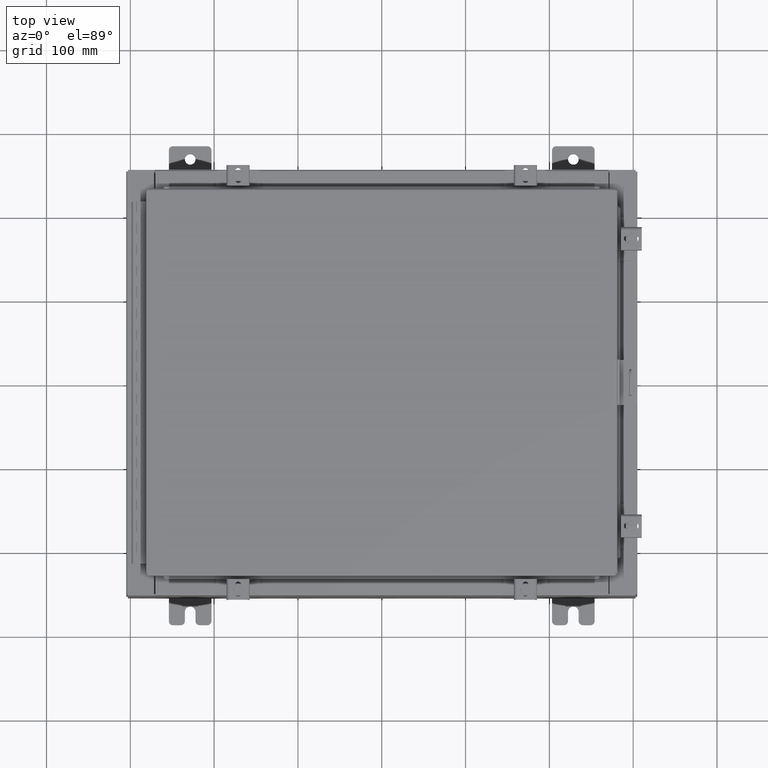
[diagram: clean part render]
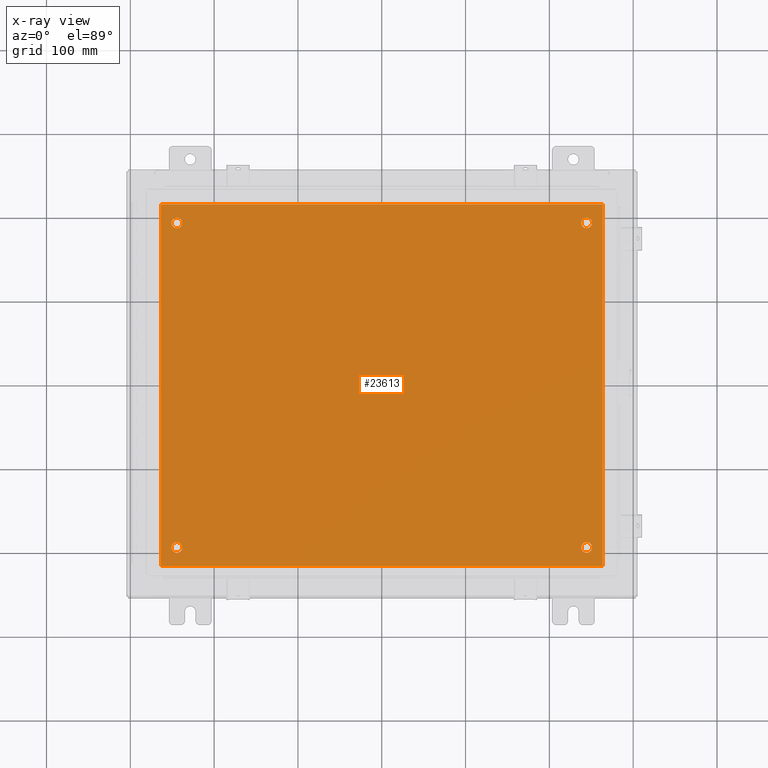
[diagram: x-ray — body ghosted, one internal face saturated and labeled with its STEP entity id]
A machine part, top view, then the same camera in x-ray: the body is ghosted and one INTERNAL B-rep face — a face not visible from any outside direction — is saturated and labeled: STEP entity #23613.
In plain terms, the highlighted planar face has unit normal (0, 0, -1).
Its self-contained STEP definition (entity closure, byte-faithful):
#573 = CIRCLE ( 'NONE', #16847, 0.2500000000000008900 ) ;
#1018 = VERTEX_POINT ( 'NONE', #15538 ) ;
#1327 = DIRECTION ( 'NONE',  ( -1.000000000000000000, 0.0000000000000000000, 0.0000000000000000000 ) ) ;
#1352 = EDGE_CURVE ( 'NONE', #27496, #16931, #22522, .T. ) ;
#1934 = DIRECTION ( 'NONE',  ( -1.000000000000000000, 0.0000000000000000000, 0.0000000000000000000 ) ) ;
#1976 = CARTESIAN_POINT ( 'NONE',  ( -9.625000000000001800, 7.624999999999998200, -0.1039999999999999800 ) ) ;
#2309 = CARTESIAN_POINT ( 'NONE',  ( 9.375000000000001800, 7.624999999999998200, -0.1039999999999999800 ) ) ;
#2373 = DIRECTION ( 'NONE',  ( 1.000000000000000000, 0.0000000000000000000, 0.0000000000000000000 ) ) ;
#2505 = ORIENTED_EDGE ( 'NONE', *, *, #24693, .F. ) ;
#2699 = ORIENTED_EDGE ( 'NONE', *, *, #5738, .T. ) ;
#2883 = VECTOR ( 'NONE', #2373, 39.37007874015748100 ) ;
#2985 = CIRCLE ( 'NONE', #23309, 0.2500000000000008900 ) ;
#3269 = EDGE_CURVE ( 'NONE', #16931, #27496, #11689, .T. ) ;
#3417 = LINE ( 'NONE', #9598, #26187 ) ;
#3978 = AXIS2_PLACEMENT_3D ( 'NONE', #28964, #14921, #1327 ) ;
#4102 = EDGE_CURVE ( 'NONE', #10489, #12985, #27028, .T. ) ;
#4253 = DIRECTION ( 'NONE',  ( -1.000000000000000000, 0.0000000000000000000, 0.0000000000000000000 ) ) ;
#4440 = CARTESIAN_POINT ( 'NONE',  ( -9.625000000000001800, -7.624999999999998200, -0.1039999999999999800 ) ) ;
#4830 = ORIENTED_EDGE ( 'NONE', *, *, #20782, .T. ) ;
#4922 = CARTESIAN_POINT ( 'NONE',  ( -9.875000000000003600, -7.624999999999998200, -0.1039999999999999800 ) ) ;
#5044 = FACE_BOUND ( 'NONE', #7443, .T. ) ;
#5544 = DIRECTION ( 'NONE',  ( 0.0000000000000000000, 1.000000000000000000, 0.0000000000000000000 ) ) ;
#5738 = EDGE_CURVE ( 'NONE', #18419, #6204, #2985, .T. ) ;
#5827 = CARTESIAN_POINT ( 'NONE',  ( -9.375000000000001800, -7.624999999999998200, -0.1039999999999999800 ) ) ;
#6204 = VERTEX_POINT ( 'NONE', #4922 ) ;
#6311 = CIRCLE ( 'NONE', #22842, 0.2499999999999998100 ) ;
#6707 = DIRECTION ( 'NONE',  ( -1.000000000000000000, 0.0000000000000000000, 0.0000000000000000000 ) ) ;
#7443 = EDGE_LOOP ( 'NONE', ( #2699, #4830 ) ) ;
#8316 = EDGE_CURVE ( 'NONE', #1018, #15896, #23472, .T. ) ;
#8875 = LINE ( 'NONE', #18254, #2883 ) ;
#9086 = AXIS2_PLACEMENT_3D ( 'NONE', #29169, #22376, #15581 ) ;
#9509 = DIRECTION ( 'NONE',  ( -0.0000000000000000000, -0.0000000000000000000, 1.000000000000000000 ) ) ;
#9598 = CARTESIAN_POINT ( 'NONE',  ( -10.38299999999999900, 8.499999999999998200, -0.1040000000000009100 ) ) ;
#9744 = EDGE_CURVE ( 'NONE', #12985, #10489, #6311, .T. ) ;
#10489 = VERTEX_POINT ( 'NONE', #20780 ) ;
#10706 = CIRCLE ( 'NONE', #3978, 0.2499999999999998100 ) ;
#10762 = ORIENTED_EDGE ( 'NONE', *, *, #25168, .T. ) ;
#10874 = CARTESIAN_POINT ( 'NONE',  ( 9.875000000000003600, 7.624999999999998200, -0.1039999999999999800 ) ) ;
#10934 = VERTEX_POINT ( 'NONE', #10874 ) ;
#10988 = PLANE ( 'NONE',  #9086 ) ;
#11040 = CARTESIAN_POINT ( 'NONE',  ( -10.38299999999999900, 8.499999999999998200, -0.1040000000000009100 ) ) ;
#11325 = VECTOR ( 'NONE', #16711, 39.37007874015748100 ) ;
#11689 = CIRCLE ( 'NONE', #22311, 0.2500000000000008900 ) ;
#11872 = DIRECTION ( 'NONE',  ( 0.0000000000000000000, -1.000000000000000000, 0.0000000000000000000 ) ) ;
#12985 = VERTEX_POINT ( 'NONE', #18435 ) ;
#13098 = CARTESIAN_POINT ( 'NONE',  ( 9.625000000000001800, -7.624999999999998200, -0.1039999999999999800 ) ) ;
#13436 = ORIENTED_EDGE ( 'NONE', *, *, #9744, .T. ) ;
#13484 = ORIENTED_EDGE ( 'NONE', *, *, #4102, .T. ) ;
#13538 = CARTESIAN_POINT ( 'NONE',  ( 9.625000000000001800, -7.624999999999998200, -0.1039999999999999800 ) ) ;
#13762 = ORIENTED_EDGE ( 'NONE', *, *, #23894, .T. ) ;
#13903 = AXIS2_PLACEMENT_3D ( 'NONE', #13098, #29070, #15386 ) ;
#14045 = EDGE_LOOP ( 'NONE', ( #2505, #23361, #20439, #15191 ) ) ;
#14614 = CARTESIAN_POINT ( 'NONE',  ( 10.38300000000000100, -8.500000000000000000, -0.1040000000000009100 ) ) ;
#14683 = ORIENTED_EDGE ( 'NONE', *, *, #1352, .T. ) ;
#14921 = DIRECTION ( 'NONE',  ( -0.0000000000000000000, -0.0000000000000000000, 1.000000000000000000 ) ) ;
#15191 = ORIENTED_EDGE ( 'NONE', *, *, #22253, .F. ) ;
#15386 = DIRECTION ( 'NONE',  ( -1.000000000000000000, 0.0000000000000000000, 0.0000000000000000000 ) ) ;
#15527 = DIRECTION ( 'NONE',  ( -0.0000000000000000000, -0.0000000000000000000, 1.000000000000000000 ) ) ;
#15538 = CARTESIAN_POINT ( 'NONE',  ( 10.38300000000000100, 8.499999999999998200, -0.1039999999999999800 ) ) ;
#15581 = DIRECTION ( 'NONE',  ( -1.000000000000000000, 0.0000000000000000000, -0.0000000000000000000 ) ) ;
#15831 = DIRECTION ( 'NONE',  ( -1.000000000000000000, 0.0000000000000000000, 0.0000000000000000000 ) ) ;
#15896 = VERTEX_POINT ( 'NONE', #11040 ) ;
#15905 = ORIENTED_EDGE ( 'NONE', *, *, #3269, .T. ) ;
#16318 = DIRECTION ( 'NONE',  ( -1.000000000000000000, 0.0000000000000000000, 0.0000000000000000000 ) ) ;
#16437 = FACE_BOUND ( 'NONE', #16597, .T. ) ;
#16508 = VERTEX_POINT ( 'NONE', #29184 ) ;
#16597 = EDGE_LOOP ( 'NONE', ( #13436, #13484 ) ) ;
#16711 = DIRECTION ( 'NONE',  ( -1.000000000000000000, -0.0000000000000000000, -0.0000000000000000000 ) ) ;
#16847 = AXIS2_PLACEMENT_3D ( 'NONE', #4440, #20367, #6707 ) ;
#16899 = DIRECTION ( 'NONE',  ( -0.0000000000000000000, -0.0000000000000000000, 1.000000000000000000 ) ) ;
#16931 = VERTEX_POINT ( 'NONE', #27251 ) ;
#17103 = CARTESIAN_POINT ( 'NONE',  ( -9.375000000000001800, 7.624999999999998200, -0.1039999999999999800 ) ) ;
#17144 = FACE_BOUND ( 'NONE', #19957, .T. ) ;
#17863 = FACE_OUTER_BOUND ( 'NONE', #14045, .T. ) ;
#17866 = DIRECTION ( 'NONE',  ( -0.0000000000000000000, -0.0000000000000000000, 1.000000000000000000 ) ) ;
#18254 = CARTESIAN_POINT ( 'NONE',  ( -10.50000000000000000, -8.500000000000000000, -0.1039999999999999800 ) ) ;
#18419 = VERTEX_POINT ( 'NONE', #5827 ) ;
#18435 = CARTESIAN_POINT ( 'NONE',  ( 9.875000000000003600, -7.624999999999998200, -0.1039999999999999800 ) ) ;
#18615 = CARTESIAN_POINT ( 'NONE',  ( -9.625000000000001800, 7.624999999999998200, -0.1039999999999999800 ) ) ;
#19007 = VECTOR ( 'NONE', #5544, 39.37007874015748100 ) ;
#19957 = EDGE_LOOP ( 'NONE', ( #10762, #13762 ) ) ;
#20367 = DIRECTION ( 'NONE',  ( -0.0000000000000000000, -0.0000000000000000000, 1.000000000000000000 ) ) ;
#20439 = ORIENTED_EDGE ( 'NONE', *, *, #8316, .F. ) ;
#20780 = CARTESIAN_POINT ( 'NONE',  ( 9.375000000000001800, -7.624999999999998200, -0.1039999999999999800 ) ) ;
#20782 = EDGE_CURVE ( 'NONE', #6204, #18419, #573, .T. ) ;
#21212 = CARTESIAN_POINT ( 'NONE',  ( -10.50000000000000000, 8.499999999999998200, -0.1039999999999999800 ) ) ;
#21714 = CIRCLE ( 'NONE', #22509, 0.2499999999999998100 ) ;
#22253 = EDGE_CURVE ( 'NONE', #24204, #1018, #25073, .T. ) ;
#22311 = AXIS2_PLACEMENT_3D ( 'NONE', #1976, #17866, #4253 ) ;
#22376 = DIRECTION ( 'NONE',  ( 0.0000000000000000000, 0.0000000000000000000, -1.000000000000000000 ) ) ;
#22509 = AXIS2_PLACEMENT_3D ( 'NONE', #29213, #15527, #1934 ) ;
#22522 = CIRCLE ( 'NONE', #29049, 0.2500000000000008900 ) ;
#22523 = FACE_BOUND ( 'NONE', #25528, .T. ) ;
#22842 = AXIS2_PLACEMENT_3D ( 'NONE', #13538, #29515, #15831 ) ;
#22978 = CARTESIAN_POINT ( 'NONE',  ( 10.38300000000000100, -8.500000000000000000, -0.1039999999999999800 ) ) ;
#23165 = CARTESIAN_POINT ( 'NONE',  ( -9.625000000000001800, -7.624999999999998200, -0.1039999999999999800 ) ) ;
#23309 = AXIS2_PLACEMENT_3D ( 'NONE', #23165, #9509, #25460 ) ;
#23361 = ORIENTED_EDGE ( 'NONE', *, *, #26653, .F. ) ;
#23472 = LINE ( 'NONE', #21212, #11325 ) ;
#23613 = ADVANCED_FACE ( 'NONE', ( #5044, #16437, #17144, #22523, #17863 ), #10988, .T. ) ;
#23894 = EDGE_CURVE ( 'NONE', #24196, #10934, #10706, .T. ) ;
#24196 = VERTEX_POINT ( 'NONE', #2309 ) ;
#24204 = VERTEX_POINT ( 'NONE', #22978 ) ;
#24693 = EDGE_CURVE ( 'NONE', #16508, #24204, #8875, .T. ) ;
#25073 = LINE ( 'NONE', #14614, #19007 ) ;
#25168 = EDGE_CURVE ( 'NONE', #10934, #24196, #21714, .T. ) ;
#25460 = DIRECTION ( 'NONE',  ( -1.000000000000000000, 0.0000000000000000000, 0.0000000000000000000 ) ) ;
#25528 = EDGE_LOOP ( 'NONE', ( #14683, #15905 ) ) ;
#26187 = VECTOR ( 'NONE', #11872, 39.37007874015748100 ) ;
#26653 = EDGE_CURVE ( 'NONE', #15896, #16508, #3417, .T. ) ;
#27028 = CIRCLE ( 'NONE', #13903, 0.2499999999999998100 ) ;
#27251 = CARTESIAN_POINT ( 'NONE',  ( -9.875000000000003600, 7.624999999999998200, -0.1039999999999999800 ) ) ;
#27496 = VERTEX_POINT ( 'NONE', #17103 ) ;
#28964 = CARTESIAN_POINT ( 'NONE',  ( 9.625000000000001800, 7.624999999999998200, -0.1039999999999999800 ) ) ;
#29049 = AXIS2_PLACEMENT_3D ( 'NONE', #18615, #16899, #16318 ) ;
#29070 = DIRECTION ( 'NONE',  ( -0.0000000000000000000, -0.0000000000000000000, 1.000000000000000000 ) ) ;
#29169 = CARTESIAN_POINT ( 'NONE',  ( 0.0000000000000000000, 0.0000000000000000000, -0.1039999999999999800 ) ) ;
#29184 = CARTESIAN_POINT ( 'NONE',  ( -10.38299999999999900, -8.500000000000000000, -0.1040000000000009100 ) ) ;
#29213 = CARTESIAN_POINT ( 'NONE',  ( 9.625000000000001800, 7.624999999999998200, -0.1039999999999999800 ) ) ;
#29515 = DIRECTION ( 'NONE',  ( -0.0000000000000000000, -0.0000000000000000000, 1.000000000000000000 ) ) ;